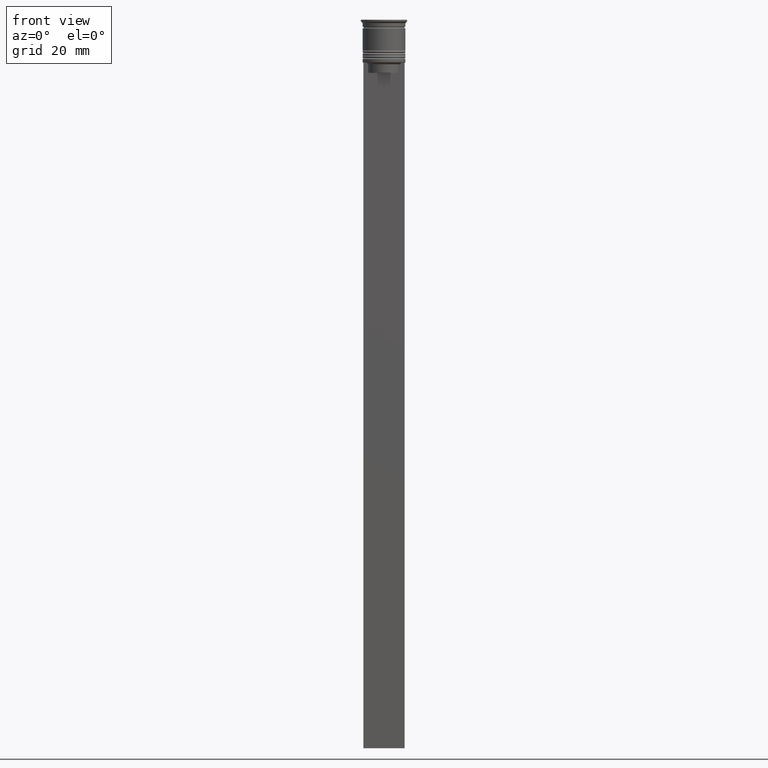
[diagram: clean part render]
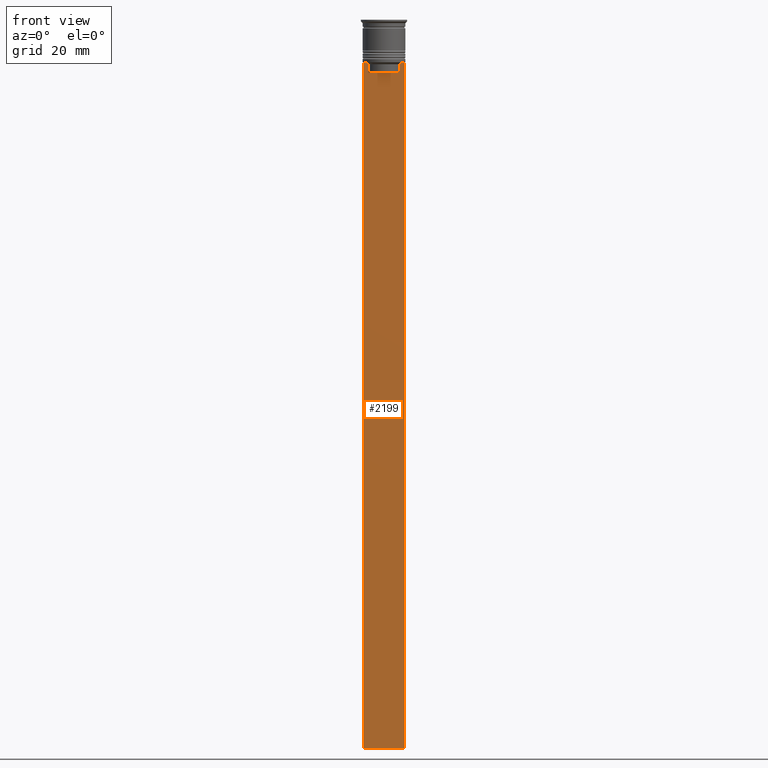
[diagram: same view with one face highlighted and labeled with its STEP entity id]
A machine part, front view. The second image highlights one B-rep face of the part: STEP entity #2199.
In plain terms, the highlighted planar face has unit normal (0, -1, -0).
Its self-contained STEP definition (entity closure, byte-faithful):
#7 = CARTESIAN_POINT ( 'NONE',  ( 6.000000000000016875, -0.5000000000000017764, -212.5000000000000284 ) ) ;
#22 = EDGE_LOOP ( 'NONE', ( #912, #941, #616, #682, #1855, #526, #2200, #2079, #1122, #1552 ) ) ;
#48 = DIRECTION ( 'NONE',  ( 0.000000000000000000, 0.000000000000000000, -1.000000000000000000 ) ) ;
#68 = LINE ( 'NONE', #7, #402 ) ;
#76 = DIRECTION ( 'NONE',  ( 0.000000000000000000, -1.000000000000000000, -0.000000000000000000 ) ) ;
#78 = CARTESIAN_POINT ( 'NONE',  ( -4.623040125285526436, -0.5000000000000017764, -13.00000000000000178 ) ) ;
#178 = DIRECTION ( 'NONE',  ( 0.000000000000000000, 0.000000000000000000, -1.000000000000000000 ) ) ;
#263 = DIRECTION ( 'NONE',  ( -0.000000000000000000, -0.000000000000000000, 1.000000000000000000 ) ) ;
#267 = PLANE ( 'NONE',  #822 ) ;
#286 = CARTESIAN_POINT ( 'NONE',  ( -5.125670687822231564, -0.5000000000000017764, -12.50000000000000000 ) ) ;
#297 = CARTESIAN_POINT ( 'NONE',  ( 4.623040125285526436, -0.5000000000000022204, -15.50000000000000000 ) ) ;
#312 = VERTEX_POINT ( 'NONE', #1434 ) ;
#328 = VECTOR ( 'NONE', #178, 1000.000000000000000 ) ;
#345 = CARTESIAN_POINT ( 'NONE',  ( -5.125670687822231564, -0.5000000000000017764, -12.50000000000000000 ) ) ;
#402 = VECTOR ( 'NONE', #613, 1000.000000000000000 ) ;
#434 = CARTESIAN_POINT ( 'NONE',  ( -5.999999999999983125, -0.5000000000000017764, -212.5000000000000284 ) ) ;
#470 = B_SPLINE_CURVE_WITH_KNOTS ( 'NONE', 3,
 ( #2033, #1814, #581, #1266 ),
 .UNSPECIFIED., .F., .F.,
 ( 4, 4 ),
 ( 0.02203698174624552780, 0.02275222543365896383 ),
 .UNSPECIFIED. ) ;
#526 = ORIENTED_EDGE ( 'NONE', *, *, #1681, .F. ) ;
#548 = EDGE_CURVE ( 'NONE', #312, #1929, #1521, .T. ) ;
#581 = CARTESIAN_POINT ( 'NONE',  ( 4.958169719475987947, -0.5000000000000017764, -12.66670967060858111 ) ) ;
#613 = DIRECTION ( 'NONE',  ( -1.000000000000000000, 0.000000000000000000, 0.000000000000000000 ) ) ;
#616 = ORIENTED_EDGE ( 'NONE', *, *, #548, .T. ) ;
#626 = CARTESIAN_POINT ( 'NONE',  ( 4.623040125285526436, -0.5000000000000017764, 0.000000000000000000 ) ) ;
#640 = EDGE_CURVE ( 'NONE', #828, #1566, #1909, .T. ) ;
#682 = ORIENTED_EDGE ( 'NONE', *, *, #1922, .F. ) ;
#683 = CARTESIAN_POINT ( 'NONE',  ( -4.623040125285526436, -0.5000000000000017764, 0.000000000000000000 ) ) ;
#714 = VERTEX_POINT ( 'NONE', #78 ) ;
#808 = CARTESIAN_POINT ( 'NONE',  ( 6.000000000000016875, -0.5000000000000017764, -0.4584054212077061097 ) ) ;
#822 = AXIS2_PLACEMENT_3D ( 'NONE', #808, #76, #1873 ) ;
#823 = VECTOR ( 'NONE', #48, 1000.000000000000000 ) ;
#828 = VERTEX_POINT ( 'NONE', #2282 ) ;
#833 = CARTESIAN_POINT ( 'NONE',  ( 5.125670687822231564, -0.5000000000000017764, -12.50000000000000000 ) ) ;
#841 = B_SPLINE_CURVE_WITH_KNOTS ( 'NONE', 3,
 ( #286, #1541, #1015, #1738 ),
 .UNSPECIFIED., .F., .F.,
 ( 4, 4 ),
 ( 0.008759809102772709091, 0.009468778395565353653 ),
 .UNSPECIFIED. ) ;
#873 = EDGE_CURVE ( 'NONE', #312, #1333, #1240, .T. ) ;
#895 = DIRECTION ( 'NONE',  ( 1.000000000000000000, 0.000000000000000000, 0.000000000000000000 ) ) ;
#912 = ORIENTED_EDGE ( 'NONE', *, *, #1171, .F. ) ;
#941 = ORIENTED_EDGE ( 'NONE', *, *, #873, .F. ) ;
#991 = CARTESIAN_POINT ( 'NONE',  ( -5.999999999999983125, -0.5000000000000017764, -0.4584054212077061097 ) ) ;
#1015 = CARTESIAN_POINT ( 'NONE',  ( -4.790630915080664742, -0.5000000000000017764, -12.83338087185995491 ) ) ;
#1026 = VERTEX_POINT ( 'NONE', #1344 ) ;
#1084 = EDGE_CURVE ( 'NONE', #1607, #1437, #1152, .T. ) ;
#1122 = ORIENTED_EDGE ( 'NONE', *, *, #1550, .F. ) ;
#1152 = LINE ( 'NONE', #626, #1755 ) ;
#1171 = EDGE_CURVE ( 'NONE', #1333, #714, #841, .T. ) ;
#1174 = DIRECTION ( 'NONE',  ( 1.000000000000000000, 0.000000000000000000, 0.000000000000000000 ) ) ;
#1240 = LINE ( 'NONE', #1775, #2172 ) ;
#1243 = LINE ( 'NONE', #1941, #2287 ) ;
#1266 = CARTESIAN_POINT ( 'NONE',  ( 5.125670687822231564, -0.5000000000000017764, -12.50000000000000000 ) ) ;
#1305 = CARTESIAN_POINT ( 'NONE',  ( 4.623040125285526436, -0.5000000000000017764, -13.00000000000000178 ) ) ;
#1333 = VERTEX_POINT ( 'NONE', #345 ) ;
#1344 = CARTESIAN_POINT ( 'NONE',  ( -4.623040125285526436, -0.5000000000000022204, -15.50000000000000000 ) ) ;
#1357 = LINE ( 'NONE', #1743, #2324 ) ;
#1434 = CARTESIAN_POINT ( 'NONE',  ( -5.999999999999983125, -0.5000000000000017764, -12.50000000000000000 ) ) ;
#1437 = VERTEX_POINT ( 'NONE', #1305 ) ;
#1521 = LINE ( 'NONE', #991, #2062 ) ;
#1541 = CARTESIAN_POINT ( 'NONE',  ( -4.958169823806760412, -0.5000000000000017764, -12.66670956677067927 ) ) ;
#1550 = EDGE_CURVE ( 'NONE', #1026, #1607, #1357, .T. ) ;
#1552 = ORIENTED_EDGE ( 'NONE', *, *, #1748, .F. ) ;
#1566 = VERTEX_POINT ( 'NONE', #1913 ) ;
#1573 = VERTEX_POINT ( 'NONE', #833 ) ;
#1607 = VERTEX_POINT ( 'NONE', #297 ) ;
#1681 = EDGE_CURVE ( 'NONE', #1573, #828, #1243, .T. ) ;
#1738 = CARTESIAN_POINT ( 'NONE',  ( -4.623040125285526436, -0.5000000000000017764, -13.00000000000000178 ) ) ;
#1743 = CARTESIAN_POINT ( 'NONE',  ( 0.000000000000000000, -0.5000000000000022204, -15.50000000000000000 ) ) ;
#1748 = EDGE_CURVE ( 'NONE', #714, #1026, #2334, .T. ) ;
#1755 = VECTOR ( 'NONE', #263, 1000.000000000000000 ) ;
#1775 = CARTESIAN_POINT ( 'NONE',  ( 6.000000000000016875, -0.5000000000000017764, -12.50000000000000000 ) ) ;
#1814 = CARTESIAN_POINT ( 'NONE',  ( 4.790630799407577634, -0.5000000000000017764, -12.83338098686238915 ) ) ;
#1855 = ORIENTED_EDGE ( 'NONE', *, *, #640, .F. ) ;
#1861 = CARTESIAN_POINT ( 'NONE',  ( 6.000000000000016875, -0.5000000000000017764, -0.4584054212077061097 ) ) ;
#1873 = DIRECTION ( 'NONE',  ( 0.000000000000000000, 0.000000000000000000, -1.000000000000000000 ) ) ;
#1886 = EDGE_CURVE ( 'NONE', #1437, #1573, #470, .T. ) ;
#1888 = FACE_OUTER_BOUND ( 'NONE', #22, .T. ) ;
#1909 = LINE ( 'NONE', #1861, #823 ) ;
#1913 = CARTESIAN_POINT ( 'NONE',  ( 6.000000000000016875, -0.5000000000000017764, -212.5000000000000284 ) ) ;
#1922 = EDGE_CURVE ( 'NONE', #1566, #1929, #68, .T. ) ;
#1929 = VERTEX_POINT ( 'NONE', #434 ) ;
#1938 = DIRECTION ( 'NONE',  ( 1.000000000000000000, 0.000000000000000000, 0.000000000000000000 ) ) ;
#1941 = CARTESIAN_POINT ( 'NONE',  ( 6.000000000000016875, -0.5000000000000017764, -12.50000000000000000 ) ) ;
#2033 = CARTESIAN_POINT ( 'NONE',  ( 4.623040125285526436, -0.5000000000000017764, -13.00000000000000178 ) ) ;
#2062 = VECTOR ( 'NONE', #2239, 1000.000000000000000 ) ;
#2079 = ORIENTED_EDGE ( 'NONE', *, *, #1084, .F. ) ;
#2172 = VECTOR ( 'NONE', #1938, 1000.000000000000000 ) ;
#2199 = ADVANCED_FACE ( 'NONE', ( #1888 ), #267, .T. ) ;
#2200 = ORIENTED_EDGE ( 'NONE', *, *, #1886, .F. ) ;
#2239 = DIRECTION ( 'NONE',  ( 0.000000000000000000, 0.000000000000000000, -1.000000000000000000 ) ) ;
#2282 = CARTESIAN_POINT ( 'NONE',  ( 6.000000000000016875, -0.5000000000000017764, -12.50000000000000000 ) ) ;
#2287 = VECTOR ( 'NONE', #895, 1000.000000000000000 ) ;
#2324 = VECTOR ( 'NONE', #1174, 1000.000000000000000 ) ;
#2334 = LINE ( 'NONE', #683, #328 ) ;